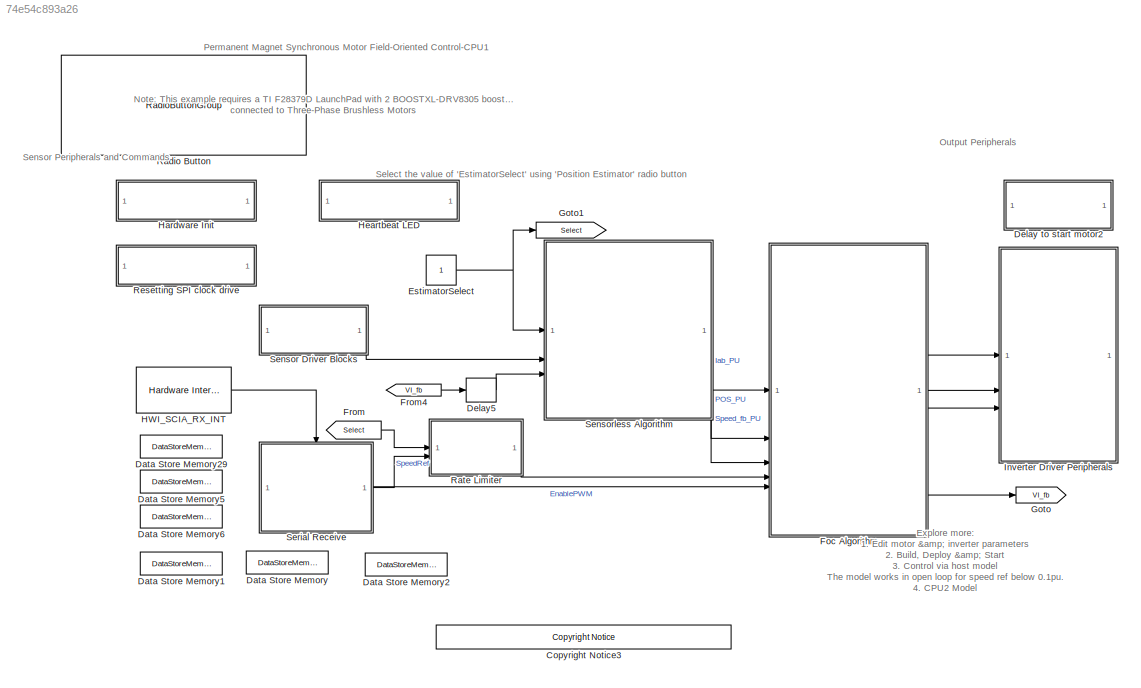
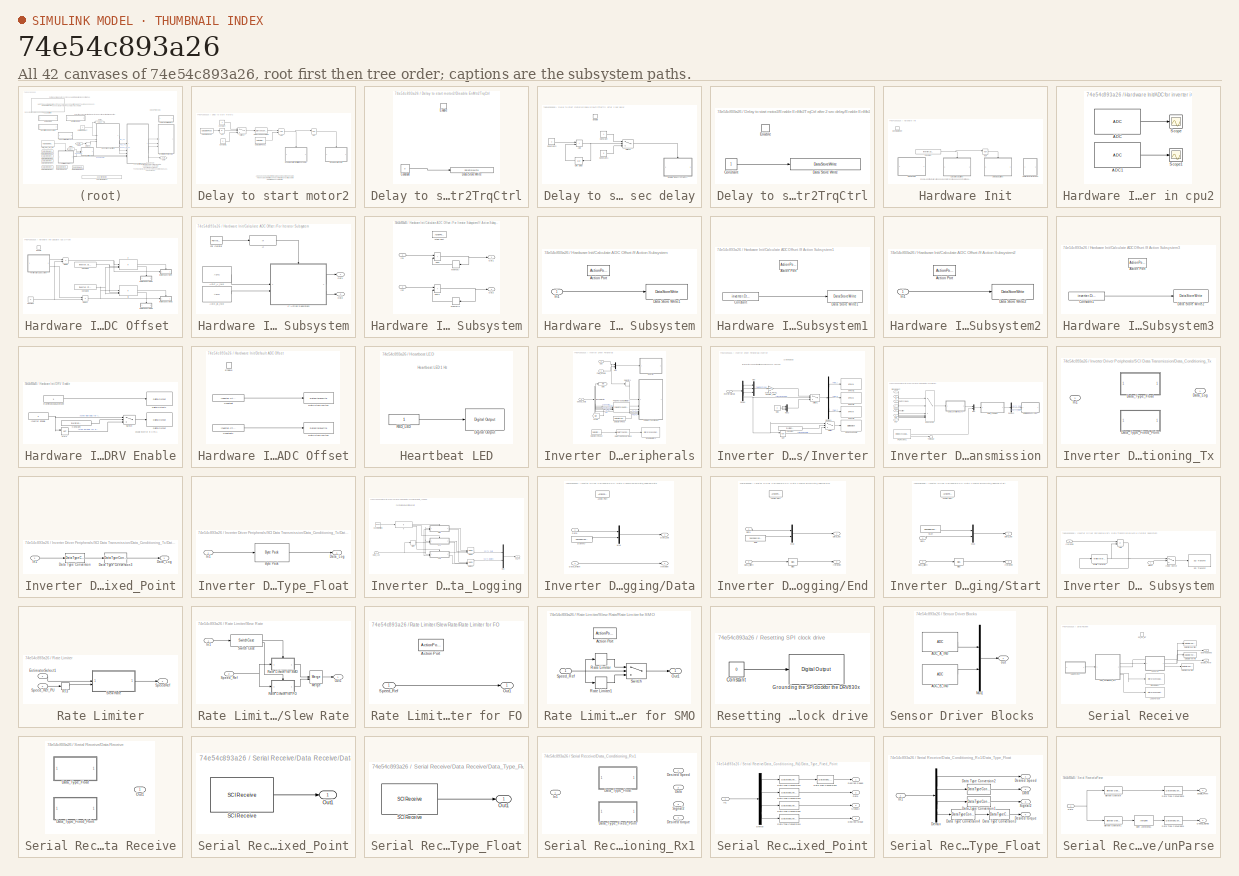
[diagram: thumbnail index - all 42 canvases of the model, root first then tree order]
MODEL slx_74e54c893a26
KIND model
CONFIG AbsTol = auto
CONFIG EnableMultiTasking = on
CONFIG FixedStep = auto
CONFIG InitFcn = mcb_pmsm_foc_dual_f28379d_datascript;
CONFIG MaxStep = auto
CONFIG MinStep = auto
CONFIG RelTol = 1e-3
CONFIG SampleTimeConstraint = Unconstrained
CONFIG SolverName = FixedStepDiscrete
CONFIG StartTime = 0.0
CONFIG StopTime = 6
WORKSPACE source: mxarray member
WORKSPACE encoderResolution = 2000
WORKSPACE hallOffset = '0.5'
WORKSPACE indexOffset = 850
WORKSPACE polePairs = '4'
BLOCK [Reference] <copyright redacted>
  SourceBlock = demo_controls/<copyright redacted>
  SourceType = <copyright redacted>
BLOCK [DataStoreMemory] Data Store Memory
  DataStoreName = SpeedRef
  NameLocation = right
  ReadBeforeWriteMsg = warning
  ShowAdditionalParam = off
  WriteAfterReadMsg = warning
  WriteAfterWriteMsg = warning
BLOCK [DataStoreMemory] Data Store Memory1
  DataStoreName = SignalSelect1
  ShowAdditionalParam = off
BLOCK [DataStoreMemory] Data Store Memory2
  DataStoreName = EnMtr2Ctrl
  OutDataTypeStr = boolean
  ReadBeforeWriteMsg = warning
  ShowAdditionalParam = off
  WriteAfterReadMsg = warning
  WriteAfterWriteMsg = warning
BLOCK [DataStoreMemory] Data Store Memory29
  DataStoreName = Enable
  InitialValue = 1
  OutDataTypeStr = boolean
  ReadBeforeWriteMsg = warning
  ShowAdditionalParam = off
  WriteAfterReadMsg = warning
  WriteAfterWriteMsg = warning
BLOCK [DataStoreMemory] Data Store Memory5
  DataStoreName = IaOffset
  InitialValue = inverter.CtSensAOffset
  ShowAdditionalParam = off
BLOCK [DataStoreMemory] Data Store Memory6
  DataStoreName = IbOffset
  InitialValue = inverter.CtSensBOffset
  ShowAdditionalParam = off
BLOCK [SubSystem] Delay to start motor2
  TreatAsAtomicUnit = on
  VariantControl = (codegen)
BLOCK [Logic] Delay to start motor2/AND
  AllPortsSameDT = off
  IconShape = distinctive
  OutDataTypeStr = boolean
BLOCK [Abs] Delay to start motor2/Abs
  SaturateOnIntegerOverflow = off
BLOCK [Constant] Delay to start motor2/Constant
  OutDataTypeStr = uint16
BLOCK [Constant] Delay to start motor2/Constant1
  OutDataTypeStr = uint16
  Value = 0
BLOCK [DataStoreRead] Delay to start motor2/Data Store Read
  DataStoreName = SpeedRef
  IndexOptions = Index vector (dialog)
  Indices = 1
  OutputSizes = 1
BLOCK [DataStoreRead] Delay to start motor2/Data Store Read1
  DataStoreName = Enable
  IndexOptions = Index vector (dialog)
  Indices = 1
  OutputSizes = 1
BLOCK [DataTypeConversion] Delay to start motor2/Data Type Conversion
  OutDataTypeStr = boolean
  RndMeth = Simplest
  SaturateOnIntegerOverflow = off
BLOCK [SubSystem] Delay to start motor2/Disable EnMtr2TrqCtrl
  TreatAsAtomicUnit = on
BLOCK [Constant] Delay to start motor2/Disable EnMtr2TrqCtrl/Constant
  OutDataTypeStr = boolean
  Value = 0
BLOCK [DataStoreWrite] Delay to start motor2/Disable EnMtr2TrqCtrl/Data Store Write
  DataStoreName = EnMtr2Ctrl
  IndexOptions = Index vector (dialog)
  Indices = 1
  OutputSizes = 1
BLOCK [EnablePort] Delay to start motor2/Disable EnMtr2TrqCtrl/Enable
  StatesWhenEnabling = reset
BLOCK [SubSystem] Delay to start motor2/Enable EnMtr2TrqCtrl after 2 sec delay
  TreatAsAtomicUnit = on
BLOCK [Sum] Delay to start motor2/Enable EnMtr2TrqCtrl after 2 sec delay/Add
  IconShape = rectangular
BLOCK [Constant] Delay to start motor2/Enable EnMtr2TrqCtrl after 2 sec delay/Constant
  OutDataTypeStr = boolean
BLOCK [Constant] Delay to start motor2/Enable EnMtr2TrqCtrl after 2 sec delay/Constant1
  OutDataTypeStr = boolean
  Value = 0
BLOCK [Constant] Delay to start motor2/Enable EnMtr2TrqCtrl after 2 sec delay/Constant2
  OutDataTypeStr = uint32
BLOCK [EnablePort] Delay to start motor2/Enable EnMtr2TrqCtrl after 2 sec delay/Enable
  StatesWhenEnabling = reset
BLOCK [SubSystem] Delay to start motor2/Enable EnMtr2TrqCtrl after 2 sec delay/Enable EnMtr2TrqCtrl
  TreatAsAtomicUnit = on
BLOCK [Constant] Delay to start motor2/Enable EnMtr2TrqCtrl after 2 sec delay/Enable EnMtr2TrqCtrl/Constant
  OutDataTypeStr = boolean
BLOCK [DataStoreWrite] Delay to start motor2/Enable EnMtr2TrqCtrl after 2 sec delay/Enable EnMtr2TrqCtrl/Data Store Write
  DataStoreName = EnMtr2Ctrl
  IndexOptions = Index vector (dialog)
  Indices = 1
  OutputSizes = 1
BLOCK [EnablePort] Delay to start motor2/Enable EnMtr2TrqCtrl after 2 sec delay/Enable EnMtr2TrqCtrl/Enable
  StatesWhenEnabling = reset
BLOCK [Switch] Delay to start motor2/Enable EnMtr2TrqCtrl after 2 sec delay/Switch
  Criteria = u2 > Threshold
  InputSameDT = off
  SaturateOnIntegerOverflow = off
  Threshold = 40000
BLOCK [UnitDelay] Delay to start motor2/Enable EnMtr2TrqCtrl after 2 sec delay/Unit Delay
  HasFrameUpgradeWarning = on
  NameLocation = top
  SampleTime = -1
BLOCK [Logic] Delay to start motor2/NOT
  AllPortsSameDT = off
  IconShape = distinctive
  Operator = NOT
  OutDataTypeStr = boolean
BLOCK [Switch] Delay to start motor2/Switch2
  Criteria = u2 > Threshold
  InputSameDT = off
  SaturateOnIntegerOverflow = off
  Threshold = Speed_openLoop_PU
BLOCK [Delay] Delay5
  DelayLength = 1
  InputPortMap = u0
BLOCK [Constant] EstimatorSelect
BLOCK [SubSystem] Foc  Algorithm
  ReferencedSubsystem = foc_sensorless_algorithm
BLOCK [From] From
  GotoTag = Select
BLOCK [From] From4
  GotoTag = VI_fb
BLOCK [Goto] Goto
  GotoTag = VI_fb
BLOCK [Goto] Goto1
  GotoTag = Select
BLOCK [Reference] HWI_SCIA_RX_INT  REF=svdschedulerlib/Hardware Interrupt v2
  LibrarySourceBlock = c2000lib/Scheduling/Hardware Interrupt
  SourceBlock = svdschedulerlib/Hardware Interrupt v2
  SourceType = HardwareInterrupt
  UserDataPersistent = on
BLOCK [SubSystem] Hardware Init
  TreatAsAtomicUnit = on
BLOCK [SubSystem] Hardware Init/ADC for inverter in cpu2
BLOCK [Reference] Hardware Init/ADC for inverter in cpu2/ADC  REF=c2802xlib/ADC
  SourceBlock = c2802xlib/ADC
  SourceType = ADC Type 3-5
  UserDataPersistent = on
BLOCK [Reference] Hardware Init/ADC for inverter in cpu2/ADC1  REF=c2802xlib/ADC
  SourceBlock = c2802xlib/ADC
  SourceType = ADC Type 3-5
  UserDataPersistent = on
BLOCK [Scope] Hardware Init/ADC for inverter in cpu2/Scope
  Floating = off
  NumInputPorts = 1
  ScopeSpecificationString = Simulink.scopes.TimeScopeBlockCfg('CurrentConfiguration', extmgr.ConfigurationSet(extmgr.Configuration('Core','General UI',true),extmgr.Configuration('Core','Source UI',true),extmgr.Configuration('Sources','WiredSimulink',true),extmgr.Configuration('Visuals','Time Domain',true),extmgr.Configuration('Tools','Plot Navigation',true),extmgr.Configuration('Tools','Measurements',true)),'Version','2021a'...<+1ch>
BLOCK [Scope] Hardware Init/ADC for inverter in cpu2/Scope1
  Floating = off
  NumInputPorts = 1
  ScopeSpecificationString = Simulink.scopes.TimeScopeBlockCfg('CurrentConfiguration', extmgr.ConfigurationSet(extmgr.Configuration('Core','General UI',true),extmgr.Configuration('Core','Source UI',true),extmgr.Configuration('Sources','WiredSimulink',true,'DataLoggingVariableName','ScopeData1'),extmgr.Configuration('Visuals','Time Domain',true),extmgr.Configuration('Tools','Plot Navigation',true),extmgr.Configuration('Tools',...<+40ch>
BLOCK [SubSystem] Hardware Init/Calculate ADC Offset 
  Priority = 1001
  TreatAsAtomicUnit = on
BLOCK [Constant] Hardware Init/Calculate ADC Offset /Constant
  Value = 8
BLOCK [Constant] Hardware Init/Calculate ADC Offset /Constant1
  OutDataTypeStr = Inherit: Inherit via back propagation
  Value = inverter.CtSensOffsetMax
BLOCK [Constant] Hardware Init/Calculate ADC Offset /Constant2
  OutDataTypeStr = Inherit: Inherit via back propagation
  Value = inverter.CtSensOffsetMin
BLOCK [Product] Hardware Init/Calculate ADC Offset /Divide
  Inputs = */
  OutDataTypeStr = uint16
BLOCK [Product] Hardware Init/Calculate ADC Offset /Divide1
  Inputs = */
  OutDataTypeStr = uint16
BLOCK [EnablePort] Hardware Init/Calculate ADC Offset /Enable
BLOCK [SubSystem] Hardware Init/Calculate ADC Offset /For Iterator Subsystem
  TreatAsAtomicUnit = on
BLOCK [Reference] Hardware Init/Calculate ADC Offset /For Iterator Subsystem/ADC_A_IN0  REF=c2802xlib/ADC
  Priority = 20
  SourceBlock = c2802xlib/ADC
  SourceType = ADC Type 3-5
  UserDataPersistent = on
BLOCK [Reference] Hardware Init/Calculate ADC Offset /For Iterator Subsystem/ADC_B_IN0  REF=c2802xlib/ADC
  Priority = 20
  SourceBlock = c2802xlib/ADC
  SourceType = ADC Type 3-5
  UserDataPersistent = on
BLOCK [ForIterator] Hardware Init/Calculate ADC Offset /For Iterator Subsystem/For Iterator
  IterationLimit = 16
  IterationVariableDataType = uint16
BLOCK [If] Hardware Init/Calculate ADC Offset /For Iterator Subsystem/If
  IfExpression = u1 > 8
  ShowElse = off
BLOCK [SubSystem] Hardware Init/Calculate ADC Offset /For Iterator Subsystem/If Action Subsystem
  TreatAsAtomicUnit = on
BLOCK [ActionPort] Hardware Init/Calculate ADC Offset /For Iterator Subsystem/If Action Subsystem/Action Port
  ActionPortLabel = if(u1 > 8)
BLOCK [Inport] Hardware Init/Calculate ADC Offset /For Iterator Subsystem/If Action Subsystem/In1
BLOCK [Inport] Hardware Init/Calculate ADC Offset /For Iterator Subsystem/If Action Subsystem/In2
  Port = 2
BLOCK [Memory] Hardware Init/Calculate ADC Offset /For Iterator Subsystem/If Action Subsystem/Memory
  InheritSampleTime = on
  NameLocation = top
BLOCK [Memory] Hardware Init/Calculate ADC Offset /For Iterator Subsystem/If Action Subsystem/Memory1
  InheritSampleTime = on
  NameLocation = top
BLOCK [Outport] Hardware Init/Calculate ADC Offset /For Iterator Subsystem/If Action Subsystem/Out1
BLOCK [Outport] Hardware Init/Calculate ADC Offset /For Iterator Subsystem/If Action Subsystem/Out2
  Port = 2
BLOCK [Sum] Hardware Init/Calculate ADC Offset /For Iterator Subsystem/If Action Subsystem/Sum
  IconShape = rectangular
BLOCK [Sum] Hardware Init/Calculate ADC Offset /For Iterator Subsystem/If Action Subsystem/Sum1
  IconShape = rectangular
BLOCK [Outport] Hardware Init/Calculate ADC Offset /For Iterator Subsystem/Out1
BLOCK [Outport] Hardware Init/Calculate ADC Offset /For Iterator Subsystem/Out2
  Port = 2
BLOCK [If] Hardware Init/Calculate ADC Offset /If
  IfExpression = u1 > u3 & u1 < u2
  NumInputs = 3
BLOCK [SubSystem] Hardware Init/Calculate ADC Offset /If Action Subsystem
  TreatAsAtomicUnit = on
BLOCK [ActionPort] Hardware Init/Calculate ADC Offset /If Action Subsystem/Action Port
  ActionPortLabel = if(u1 > u3 & u1 < u2)
BLOCK [DataStoreWrite] Hardware Init/Calculate ADC Offset /If Action Subsystem/Data Store Write1
  DataStoreName = IaOffset
  IndexOptions = Index vector (dialog)
  Indices = 1
  OutputSizes = 1
BLOCK [Inport] Hardware Init/Calculate ADC Offset /If Action Subsystem/In1
BLOCK [SubSystem] Hardware Init/Calculate ADC Offset /If Action Subsystem1
  TreatAsAtomicUnit = on
BLOCK [ActionPort] Hardware Init/Calculate ADC Offset /If Action Subsystem1/Action Port
  ActionPortLabel = else
BLOCK [Constant] Hardware Init/Calculate ADC Offset /If Action Subsystem1/Constant
  OutDataTypeStr = Inherit: Inherit via back propagation
  Value = inverter.CtSensAOffset
BLOCK [DataStoreWrite] Hardware Init/Calculate ADC Offset /If Action Subsystem1/Data Store Write1
  DataStoreName = IaOffset
  IndexOptions = Index vector (dialog)
  Indices = 1
  OutputSizes = 1
BLOCK [SubSystem] Hardware Init/Calculate ADC Offset /If Action Subsystem2
  TreatAsAtomicUnit = on
BLOCK [ActionPort] Hardware Init/Calculate ADC Offset /If Action Subsystem2/Action Port
  ActionPortLabel = if(u1 > u3 & u1 < u2)
BLOCK [DataStoreWrite] Hardware Init/Calculate ADC Offset /If Action Subsystem2/Data Store Write2
  DataStoreName = IbOffset
  IndexOptions = Index vector (dialog)
  Indices = 1
  OutputSizes = 1
BLOCK [Inport] Hardware Init/Calculate ADC Offset /If Action Subsystem2/In1
BLOCK [SubSystem] Hardware Init/Calculate ADC Offset /If Action Subsystem3
  TreatAsAtomicUnit = on
BLOCK [ActionPort] Hardware Init/Calculate ADC Offset /If Action Subsystem3/Action Port
  ActionPortLabel = else
BLOCK [Constant] Hardware Init/Calculate ADC Offset /If Action Subsystem3/Constant1
  OutDataTypeStr = Inherit: Inherit via back propagation
  Value = inverter.CtSensBOffset
BLOCK [DataStoreWrite] Hardware Init/Calculate ADC Offset /If Action Subsystem3/Data Store Write2
  DataStoreName = IbOffset
  IndexOptions = Index vector (dialog)
  Indices = 1
  OutputSizes = 1
BLOCK [If] Hardware Init/Calculate ADC Offset /If1
  IfExpression = u1 > u3 & u1 < u2
  NumInputs = 3
BLOCK [Constant] Hardware Init/Constant
  Value = inverter.ADCOffsetCalibEnable
BLOCK [SubSystem] Hardware Init/DRV Enable
  Priority = 1
BLOCK [Constant] Hardware Init/DRV Enable/Constant
  Value = inverter.EnableLogic
BLOCK [Reference] Hardware Init/DRV Enable/Digital Output  REF=c2837xDlib/Digital Output
  Priority = 10
  SourceBlock = c2837xDlib/Digital Output
  SourceType = F2837x GPIO Digital Output
  UserDataPersistent = on
BLOCK [Reference] Hardware Init/DRV Enable/Digital Output1  REF=c2837xDlib/Digital Output
  Priority = 10
  SourceBlock = c2837xDlib/Digital Output
  SourceType = F2837x GPIO Digital Output
  UserDataPersistent = on
BLOCK [Constant] Hardware Init/DRV Enable/Inverter Enable
  OutDataTypeStr = uint16
  SampleTime = -1
BLOCK [Logic] Hardware Init/DRV Enable/NOT
  AllPortsSameDT = off
  IconShape = distinctive
  Operator = NOT
  OutDataTypeStr = boolean
BLOCK [Constant] Hardware Init/DRV Enable/RunTimeMeasurement
  OutDataTypeStr = uint16
  SampleTime = -1
BLOCK [Switch] Hardware Init/DRV Enable/Switch
  Criteria = u2 > Threshold
  InputSameDT = off
  SaturateOnIntegerOverflow = off
BLOCK [SubSystem] Hardware Init/Default ADC Offset
  Priority = 1001
  TreatAsAtomicUnit = on
BLOCK [Constant] Hardware Init/Default ADC Offset/Constant
  OutDataTypeStr = Inherit: Inherit via back propagation
  Value = inverter.CtSensAOffset
BLOCK [Constant] Hardware Init/Default ADC Offset/Constant1
  OutDataTypeStr = Inherit: Inherit via back propagation
  Value = inverter.CtSensBOffset
BLOCK [DataStoreWrite] Hardware Init/Default ADC Offset/Data Store Write1
  DataStoreName = IaOffset
  IndexOptions = Index vector (dialog)
  Indices = 1
  OutputSizes = 1
BLOCK [DataStoreWrite] Hardware Init/Default ADC Offset/Data Store Write2
  DataStoreName = IbOffset
  IndexOptions = Index vector (dialog)
  Indices = 1
  OutputSizes = 1
BLOCK [EnablePort] Hardware Init/Default ADC Offset/Enable
BLOCK [EventListener] Hardware Init/Event Listener
  DisableCoverage = on
  EventName = reset
BLOCK [Logic] Hardware Init/NOT
  AllPortsSameDT = off
  IconShape = distinctive
  Operator = NOT
  OutDataTypeStr = boolean
BLOCK [SubSystem] Heartbeat LED
  TreatAsAtomicUnit = on
BLOCK [Reference] Heartbeat LED/Digital Output  REF=c2837xDlib/Digital Output
  SourceBlock = c2837xDlib/Digital Output
  SourceType = F2837x GPIO Digital Output
  UserDataPersistent = on
BLOCK [Constant] Heartbeat LED/RED_LED
  OutDataTypeStr = uint16
  SampleTime = 0.5
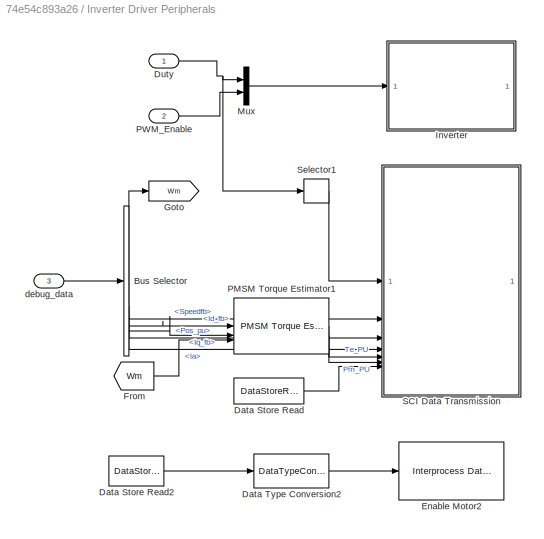
BLOCK [SubSystem] Inverter Driver Peripherals
  RTWMemSecFuncExecute = code_ramfuncs
  RTWSystemCode = Nonreusable function
  TreatAsAtomicUnit = on
BLOCK [BusSelector] Inverter Driver Peripherals/Bus Selector
  OutputSignals = Speedfb,Pos_pu,Ia,Id_fb,Iq_fb
BLOCK [DataStoreRead] Inverter Driver Peripherals/Data Store Read
  DataStoreName = SignalSelect1
  IndexOptions = Index vector (dialog)
  Indices = 1
  OutputSizes = 1
BLOCK [DataStoreRead] Inverter Driver Peripherals/Data Store Read2
  DataStoreName = EnMtr2Ctrl
  IndexOptions = Index vector (dialog)
  Indices = 1
  OutputSizes = 1
BLOCK [DataTypeConversion] Inverter Driver Peripherals/Data Type Conversion2
  OutDataTypeStr = uint16
  RndMeth = Floor
  SaturateOnIntegerOverflow = off
BLOCK [Inport] Inverter Driver Peripherals/Duty
BLOCK [Reference] Inverter Driver Peripherals/Enable Motor2  REF=procinterlib/Interprocess Data Write
  SourceBlock = procinterlib/Interprocess Data Write
  SourceType = Interprocess Data Write
BLOCK [From] Inverter Driver Peripherals/From
  GotoTag = Wm
BLOCK [Goto] Inverter Driver Peripherals/Goto
  GotoTag = Wm
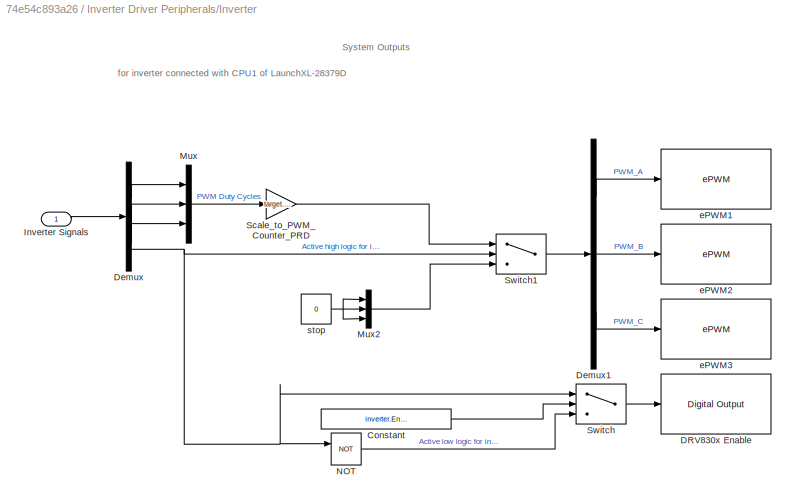
BLOCK [SubSystem] Inverter Driver Peripherals/Inverter
BLOCK [Constant] Inverter Driver Peripherals/Inverter/Constant
  Value = inverter.EnableLogic
BLOCK [Reference] Inverter Driver Peripherals/Inverter/DRV830x Enable  REF=c2837xDlib/Digital Output
  SourceBlock = c2837xDlib/Digital Output
  SourceType = F2837x GPIO Digital Output
  UserDataPersistent = on
BLOCK [Demux] Inverter Driver Peripherals/Inverter/Demux
BLOCK [Demux] Inverter Driver Peripherals/Inverter/Demux1
  Outputs = 3
BLOCK [Inport] Inverter Driver Peripherals/Inverter/Inverter Signals
BLOCK [Mux] Inverter Driver Peripherals/Inverter/Mux
  DisplayOption = bar
  Inputs = 3
BLOCK [Mux] Inverter Driver Peripherals/Inverter/Mux2
  DisplayOption = bar
  Inputs = 3
BLOCK [Logic] Inverter Driver Peripherals/Inverter/NOT
  AllPortsSameDT = off
  IconShape = distinctive
  Operator = NOT
  OutDataTypeStr = boolean
BLOCK [Gain] Inverter Driver Peripherals/Inverter/Scale_to_PWM_Counter_PRD
  Gain = target.PWM_Counter_Period
  OutDataTypeStr = uint16
  RndMeth = Simplest
BLOCK [Switch] Inverter Driver Peripherals/Inverter/Switch
  Criteria = u2 > Threshold
  InputSameDT = off
  SaturateOnIntegerOverflow = off
BLOCK [Switch] Inverter Driver Peripherals/Inverter/Switch1
  InputSameDT = off
  SaturateOnIntegerOverflow = off
  Threshold = 0.5
BLOCK [Reference] Inverter Driver Peripherals/Inverter/ePWM1  REF=c2802xlib/ePWM
  SourceBlock = c2802xlib/ePWM
  SourceType = ePWM Type 1-4
  UserDataPersistent = on
BLOCK [Reference] Inverter Driver Peripherals/Inverter/ePWM2  REF=c2802xlib/ePWM
  SourceBlock = c2802xlib/ePWM
  SourceType = ePWM Type 1-4
  UserDataPersistent = on
BLOCK [Reference] Inverter Driver Peripherals/Inverter/ePWM3  REF=c2802xlib/ePWM
  SourceBlock = c2802xlib/ePWM
  SourceType = ePWM Type 1-4
  UserDataPersistent = on
BLOCK [Constant] Inverter Driver Peripherals/Inverter/stop
  OutDataTypeStr = uint16
  Value = 0
BLOCK [Mux] Inverter Driver Peripherals/Mux
  DisplayOption = bar
  Inputs = 2
BLOCK [Reference] Inverter Driver Peripherals/PMSM Torque Estimator1  REF=mcbpmsmnonlinearlib/PMSM Torque Estimator
  SourceBlock = mcbpmsmnonlinearlib/PMSM Torque Estimator
  SourceType = PMSM Torque Estimator
BLOCK [Inport] Inverter Driver Peripherals/PWM_Enable
  Port = 2
BLOCK [SubSystem] Inverter Driver Peripherals/SCI Data Transmission
BLOCK [SubSystem] Inverter Driver Peripherals/SCI Data Transmission/Data_Conditioning_Tx
  Variant = on
BLOCK [Outport] Inverter Driver Peripherals/SCI Data Transmission/Data_Conditioning_Tx/Data_Log
BLOCK [SubSystem] Inverter Driver Peripherals/SCI Data Transmission/Data_Conditioning_Tx/Data_Type_Fixed_Point
  VariantControl = ~isequal(dataType,'single')
BLOCK [DataTypeConversion] Inverter Driver Peripherals/SCI Data Transmission/Data_Conditioning_Tx/Data_Type_Fixed_Point/Data Type Conversion
  OutDataTypeStr = fixdt(1,32,28)
  RndMeth = Simplest
  SaturateOnIntegerOverflow = off
BLOCK [DataTypeConversion] Inverter Driver Peripherals/SCI Data Transmission/Data_Conditioning_Tx/Data_Type_Fixed_Point/Data Type Conversion3
  ConvertRealWorld = Stored Integer (SI)
  OutDataTypeStr = uint32
  RndMeth = Simplest
  SaturateOnIntegerOverflow = off
BLOCK [Outport] Inverter Driver Peripherals/SCI Data Transmission/Data_Conditioning_Tx/Data_Type_Fixed_Point/Data_Log
BLOCK [Inport] Inverter Driver Peripherals/SCI Data Transmission/Data_Conditioning_Tx/Data_Type_Fixed_Point/In1
BLOCK [SubSystem] Inverter Driver Peripherals/SCI Data Transmission/Data_Conditioning_Tx/Data_Type_Float
  VariantControl = isequal(dataType, 'single')
BLOCK [Reference] Inverter Driver Peripherals/SCI Data Transmission/Data_Conditioning_Tx/Data_Type_Float/Byte Pack  REF=svdutilitieslib/Byte Pack
  SourceBlock = svdutilitieslib/Byte Pack
  SourceType = Byte pack
BLOCK [Outport] Inverter Driver Peripherals/SCI Data Transmission/Data_Conditioning_Tx/Data_Type_Float/Data_Log
BLOCK [Inport] Inverter Driver Peripherals/SCI Data Transmission/Data_Conditioning_Tx/Data_Type_Float/In1
BLOCK [Inport] Inverter Driver Peripherals/SCI Data Transmission/Data_Conditioning_Tx/In1
BLOCK [SubSystem] Inverter Driver Peripherals/SCI Data Transmission/Data_Logging
BLOCK [Reference] Inverter Driver Peripherals/SCI Data Transmission/Data_Logging/Counter Limited  REF=simulink/Sources/Counter
Limited
  SourceBlock = simulink/Sources/Counter\nLimited
  SourceType = Counter Limited
BLOCK [SubSystem] Inverter Driver Peripherals/SCI Data Transmission/Data_Logging/Data
  TreatAsAtomicUnit = on
BLOCK [ActionPort] Inverter Driver Peripherals/SCI Data Transmission/Data_Logging/Data/Action Port
  ActionPortLabel = else
BLOCK [Inport] Inverter Driver Peripherals/SCI Data Transmission/Data_Logging/Data/Data
BLOCK [Outport] Inverter Driver Peripherals/SCI Data Transmission/Data_Logging/Data/Data_out
  VectorParamsAs1DForOutWhenUnconnected = off
BLOCK [Inport] Inverter Driver Peripherals/SCI Data Transmission/Data_Logging/Data/Data_width
  Port = 2
BLOCK [Constant] Inverter Driver Peripherals/SCI Data Transmission/Data_Logging/Data/Dummy
  OutDataTypeStr = uint32
  Value = hex2dec('0000')
BLOCK [Outport] Inverter Driver Peripherals/SCI Data Transmission/Data_Logging/Data/Iteration
  Port = 2
  VectorParamsAs1DForOutWhenUnconnected = off
BLOCK [Mux] Inverter Driver Peripherals/SCI Data Transmission/Data_Logging/Data/Mux
  DisplayOption = bar
  Inputs = 2
BLOCK [Inport] Inverter Driver Peripherals/SCI Data Transmission/Data_Logging/Data_Log
BLOCK [SubSystem] Inverter Driver Peripherals/SCI Data Transmission/Data_Logging/End
  TreatAsAtomicUnit = on
BLOCK [ActionPort] Inverter Driver Peripherals/SCI Data Transmission/Data_Logging/End/Action Port
  ActionPortLabel = elseif(u1 == 599)
BLOCK [Bias] Inverter Driver Peripherals/SCI Data Transmission/Data_Logging/End/Bias
  Bias = 1
  SaturateOnIntegerOverflow = off
BLOCK [Inport] Inverter Driver Peripherals/SCI Data Transmission/Data_Logging/End/Data
BLOCK [Outport] Inverter Driver Peripherals/SCI Data Transmission/Data_Logging/End/Data_out
  VectorParamsAs1DForOutWhenUnconnected = off
BLOCK [Inport] Inverter Driver Peripherals/SCI Data Transmission/Data_Logging/End/Data_width
  Port = 2
BLOCK [Constant] Inverter Driver Peripherals/SCI Data Transmission/Data_Logging/End/End
  OutDataTypeStr = uint32
  Value = hex2dec('45454545')
BLOCK [Outport] Inverter Driver Peripherals/SCI Data Transmission/Data_Logging/End/Iteration
  Port = 2
  VectorParamsAs1DForOutWhenUnconnected = off
BLOCK [Mux] Inverter Driver Peripherals/SCI Data Transmission/Data_Logging/End/Mux
  DisplayOption = bar
  Inputs = 2
BLOCK [If] Inverter Driver Peripherals/SCI Data Transmission/Data_Logging/If
  ElseIfExpressions = u1 == 599
  IfExpression = u1 == 0
BLOCK [Merge] Inverter Driver Peripherals/SCI Data Transmission/Data_Logging/Merge
  Inputs = 3
BLOCK [Merge] Inverter Driver Peripherals/SCI Data Transmission/Data_Logging/Merge1
  Inputs = 3
BLOCK [Mux] Inverter Driver Peripherals/SCI Data Transmission/Data_Logging/Mux
  DisplayOption = bar
  Inputs = 2
BLOCK [Outport] Inverter Driver Peripherals/SCI Data Transmission/Data_Logging/SCI_Tx
BLOCK [SubSystem] Inverter Driver Peripherals/SCI Data Transmission/Data_Logging/Start
  TreatAsAtomicUnit = on
BLOCK [ActionPort] Inverter Driver Peripherals/SCI Data Transmission/Data_Logging/Start/Action Port
  ActionPortLabel = if(u1 == 0)
BLOCK [Bias] Inverter Driver Peripherals/SCI Data Transmission/Data_Logging/Start/Bias
  Bias = 1
  SaturateOnIntegerOverflow = off
BLOCK [Inport] Inverter Driver Peripherals/SCI Data Transmission/Data_Logging/Start/Data
BLOCK [Outport] Inverter Driver Peripherals/SCI Data Transmission/Data_Logging/Start/Data_out
  VectorParamsAs1DForOutWhenUnconnected = off
BLOCK [Inport] Inverter Driver Peripherals/SCI Data Transmission/Data_Logging/Start/Data_width
  Port = 2
BLOCK [Outport] Inverter Driver Peripherals/SCI Data Transmission/Data_Logging/Start/Iteration
  Port = 2
  VectorParamsAs1DForOutWhenUnconnected = off
BLOCK [Mux] Inverter Driver Peripherals/SCI Data Transmission/Data_Logging/Start/Mux
  DisplayOption = bar
  Inputs = 2
BLOCK [Constant] Inverter Driver Peripherals/SCI Data Transmission/Data_Logging/Start/Start
  OutDataTypeStr = uint32
  Value = hex2dec('53535353')
BLOCK [Width] Inverter Driver Peripherals/SCI Data Transmission/Data_Logging/Width
  DataType = uint16
  OutDataTypeMode = All ports same datatype
BLOCK [Demux] Inverter Driver Peripherals/SCI Data Transmission/Demux2
  Outputs = 2
BLOCK [Inport] Inverter Driver Peripherals/SCI Data Transmission/Duty Cycle (Va)
BLOCK [Reference] Inverter Driver Peripherals/SCI Data Transmission/IPC Receive1  REF=procinterlib/Interprocess Data Read
  SourceBlock = procinterlib/Interprocess Data Read
  SourceType = Interprocess Data Read
BLOCK [Inport] Inverter Driver Peripherals/SCI Data Transmission/Ia
  Port = 4
BLOCK [MultiPortSwitch] Inverter Driver Peripherals/SCI Data Transmission/Index Vector
  DataPortOrder = Zero-based contiguous
  InputSameDT = off
  Inputs = 6
  SaturateOnIntegerOverflow = off
  zeroidx = on
BLOCK [Mux] Inverter Driver Peripherals/SCI Data Transmission/Mux
  DisplayOption = bar
  Inputs = 2
BLOCK [Inport] Inverter Driver Peripherals/SCI Data Transmission/Pm
  Port = 6
BLOCK [Inport] Inverter Driver Peripherals/SCI Data Transmission/Position
  Port = 3
BLOCK [Inport] Inverter Driver Peripherals/SCI Data Transmission/Signal Select
  Port = 7
BLOCK [Inport] Inverter Driver Peripherals/SCI Data Transmission/Speed
  Port = 2
BLOCK [Terminator] Inverter Driver Peripherals/SCI Data Transmission/Terminator
BLOCK [Inport] Inverter Driver Peripherals/SCI Data Transmission/Tm
  Port = 5
BLOCK [SubSystem] Inverter Driver Peripherals/SCI Data Transmission/While Iterator Subsystem
  TreatAsAtomicUnit = on
BLOCK [Sum] Inverter Driver Peripherals/SCI Data Transmission/While Iterator Subsystem/Add
  IconShape = rectangular
  Inputs = +-
  OutDataTypeStr = Inherit: Same as first input
BLOCK [Inport] Inverter Driver Peripherals/SCI Data Transmission/While Iterator Subsystem/Data
BLOCK [MultiPortSwitch] Inverter Driver Peripherals/SCI Data Transmission/While Iterator Subsystem/Index Vector
  InputSameDT = off
  Inputs = 1
  SaturateOnIntegerOverflow = off
BLOCK [Inport] Inverter Driver Peripherals/SCI Data Transmission/While Iterator Subsystem/Iteration
  Port = 2
BLOCK [Reference] Inverter Driver Peripherals/SCI Data Transmission/While Iterator Subsystem/SCI Transmit  REF=c280xlib/SCI Transmit
  SourceBlock = c280xlib/SCI Transmit
  SourceType = C28x SCI Transmit
BLOCK [WhileIterator] Inverter Driver Peripherals/SCI Data Transmission/While Iterator Subsystem/While Iterator
  MaxIters = -1
  OutputDataType = int16
  ShowIterationPort = on
  WhileBlockType = do-while
BLOCK [Selector] Inverter Driver Peripherals/Selector1
  IndexOptions = Index vector (dialog)
  Indices = [1]
  InputPortWidth = 3
  OutputSizes = 1
BLOCK [Inport] Inverter Driver Peripherals/debug_data
  Port = 3
BLOCK [RadioButtonGroup] Radio Button
  ButtonGroupName = Postion Estimator
  LabelPosition = Hide
  SelectedLabel = Flux observer
BLOCK [SubSystem] Rate Limiter
  SystemSampleTime = Ts_speed
BLOCK [Inport] Rate Limiter/EstimatorSelect1
BLOCK [RateTransition] Rate Limiter/RT3
  Deterministic = off
  NameLocation = top
  OutPortSampleTime = Ts_speed
BLOCK [SubSystem] Rate Limiter/Slew Rate
  SystemSampleTime = Ts_speed
  TreatAsAtomicUnit = on
BLOCK [Inport] Rate Limiter/Slew Rate/In1
BLOCK [Merge] Rate Limiter/Slew Rate/Merge
BLOCK [Outport] Rate Limiter/Slew Rate/Out1
BLOCK [SubSystem] Rate Limiter/Slew Rate/Rate Limiter for FO
  TreatAsAtomicUnit = on
BLOCK [ActionPort] Rate Limiter/Slew Rate/Rate Limiter for FO/Action Port
  ActionPortLabel = case [ 1 ]:
BLOCK [Outport] Rate Limiter/Slew Rate/Rate Limiter for FO/Out1
BLOCK [Inport] Rate Limiter/Slew Rate/Rate Limiter for FO/Speed_Ref
BLOCK [SubSystem] Rate Limiter/Slew Rate/Rate Limiter for SMO
  TreatAsAtomicUnit = on
BLOCK [ActionPort] Rate Limiter/Slew Rate/Rate Limiter for SMO/Action Port
  ActionPortLabel = case [ 0 ]:
BLOCK [Outport] Rate Limiter/Slew Rate/Rate Limiter for SMO/Out1
BLOCK [RateLimiter] Rate Limiter/Slew Rate/Rate Limiter for SMO/Rate Limiter
  FallingSlewLimit = -acceleration
  InitialCondition = Speed_openLoop_PU
  RisingSlewLimit = acceleration
  SampleTimeMode = inherited
BLOCK [RateLimiter] Rate Limiter/Slew Rate/Rate Limiter for SMO/Rate Limiter1
  FallingSlewLimit = -acceleration
  InitialCondition = -Speed_openLoop_PU
  RisingSlewLimit = acceleration
  SampleTimeMode = inherited
BLOCK [Inport] Rate Limiter/Slew Rate/Rate Limiter for SMO/Speed_Ref
BLOCK [Switch] Rate Limiter/Slew Rate/Rate Limiter for SMO/Switch
  InputSameDT = off
  SaturateOnIntegerOverflow = off
BLOCK [Inport] Rate Limiter/Slew Rate/Speed_Ref
  Port = 2
BLOCK [SwitchCase] Rate Limiter/Slew Rate/Switch Case
  CaseConditions = {0,1}
  ShowDefaultCase = off
BLOCK [Outport] Rate Limiter/SpeedRef
BLOCK [Inport] Rate Limiter/Speed_Ref_PU
  Port = 2
BLOCK [SubSystem] Resetting SPI clock drive
BLOCK [Constant] Resetting SPI clock drive/Constant
  OutDataTypeStr = uint16
  SampleTime = 0.01
  Value = 0
BLOCK [Reference] Resetting SPI clock drive/Grounding the SPI clockfor the DRV830x  REF=c2837xDlib/Digital Output
  SourceBlock = c2837xDlib/Digital Output
  SourceType = F2837x GPIO Digital Output
  UserDataPersistent = on
BLOCK [SubSystem] Sensor Driver Blocks 
  RTWMemSecFuncExecute = code_ramfuncs
  RTWSystemCode = Nonreusable function
  SystemSampleTime = Ts
  TreatAsAtomicUnit = on
  VariantControl = (codegen)
BLOCK [Reference] Sensor Driver Blocks /ADC_A_IN0  REF=c2802xlib/ADC
  SourceBlock = c2802xlib/ADC
  SourceType = ADC Type 3-5
  UserDataPersistent = on
BLOCK [Reference] Sensor Driver Blocks /ADC_B_IN0  REF=c2802xlib/ADC
  SourceBlock = c2802xlib/ADC
  SourceType = ADC Type 3-5
  UserDataPersistent = on
BLOCK [Mux] Sensor Driver Blocks /Mux1
  DisplayOption = bar
  Inputs = 2
BLOCK [Outport] Sensor Driver Blocks /out
BLOCK [SubSystem] Sensorless Algorithm
  RTWMemSecFuncExecute = code_ramfuncs
  RTWSystemCode = Nonreusable function
  ReferencedSubsystem = sensorless_algorithm
  TreatAsAtomicUnit = on
BLOCK [SubSystem] Serial Receive
  RTWMemSecFuncExecute = code_ramfuncs
  SystemSampleTime = 1e-3
BLOCK [SubSystem] Serial Receive/Data Receive
  Variant = on
BLOCK [SubSystem] Serial Receive/Data Receive/Data_Type_Fixed_Point
  VariantControl = ~isequal(dataType, 'single')
BLOCK [Outport] Serial Receive/Data Receive/Data_Type_Fixed_Point/Out1
BLOCK [Reference] Serial Receive/Data Receive/Data_Type_Fixed_Point/SCI Receive  REF=c280xlib/SCI Receive
  SourceBlock = c280xlib/SCI Receive
  SourceType = C28x SCI Receive
BLOCK [SubSystem] Serial Receive/Data Receive/Data_Type_Float
  VariantControl = isequal(dataType, 'single')
BLOCK [Outport] Serial Receive/Data Receive/Data_Type_Float/Out1
BLOCK [Reference] Serial Receive/Data Receive/Data_Type_Float/SCI Receive  REF=c280xlib/SCI Receive
  SourceBlock = c280xlib/SCI Receive
  SourceType = C28x SCI Receive
BLOCK [Outport] Serial Receive/Data Receive/Out1
BLOCK [DataStoreWrite] Serial Receive/Data Store Write
  DataStoreName = Enable
  IndexOptions = Index vector (dialog)
  Indices = 1
  OutputSizes = 1
BLOCK [DataStoreWrite] Serial Receive/Data Store Write1
  DataStoreName = SpeedRef
  IndexOptions = Index vector (dialog)
  Indices = 1
  OutputSizes = 1
BLOCK [DataStoreWrite] Serial Receive/Data Store Write2
  DataStoreName = SignalSelect1
  IndexOptions = Index vector (dialog)
  Indices = 1
  OutputSizes = 1
BLOCK [SubSystem] Serial Receive/Data_Conditioning_Rx1
  Variant = on
BLOCK [Outport] Serial Receive/Data_Conditioning_Rx1/Data
  Port = 2
BLOCK [SubSystem] Serial Receive/Data_Conditioning_Rx1/Data_Type_Fixed_Point
  VariantControl = ~isequal(dataType, 'single')
BLOCK [Outport] Serial Receive/Data_Conditioning_Rx1/Data_Type_Fixed_Point/Data
  Port = 2
BLOCK [DataTypeConversion] Serial Receive/Data_Conditioning_Rx1/Data_Type_Fixed_Point/Data Type Conversion1
  OutDataTypeStr = dataType
  RndMeth = Simplest
  SaturateOnIntegerOverflow = off
BLOCK [DataTypeConversion] Serial Receive/Data_Conditioning_Rx1/Data_Type_Fixed_Point/Data Type Conversion2
  ConvertRealWorld = Stored Integer (SI)
  OutDataTypeStr = fixdt(1,32,28)
  RndMeth = Simplest
  SaturateOnIntegerOverflow = off
BLOCK [DataTypeConversion] Serial Receive/Data_Conditioning_Rx1/Data_Type_Fixed_Point/Data Type Conversion3
  OutDataTypeStr = uint16
  RndMeth = Simplest
  SaturateOnIntegerOverflow = off
BLOCK [DataTypeConversion] Serial Receive/Data_Conditioning_Rx1/Data_Type_Fixed_Point/Data Type Conversion4
  OutDataTypeStr = uint32
  RndMeth = Simplest
  SaturateOnIntegerOverflow = off
BLOCK [DataTypeConversion] Serial Receive/Data_Conditioning_Rx1/Data_Type_Fixed_Point/Data Type Conversion6
  OutDataTypeStr = uint16
  RndMeth = Simplest
  SaturateOnIntegerOverflow = off
BLOCK [Demux] Serial Receive/Data_Conditioning_Rx1/Data_Type_Fixed_Point/Demux
BLOCK [Outport] Serial Receive/Data_Conditioning_Rx1/Data_Type_Fixed_Point/Desired Speed
BLOCK [Outport] Serial Receive/Data_Conditioning_Rx1/Data_Type_Fixed_Point/Desired torque
  Port = 4
BLOCK [Inport] Serial Receive/Data_Conditioning_Rx1/Data_Type_Fixed_Point/In1
BLOCK [Outport] Serial Receive/Data_Conditioning_Rx1/Data_Type_Fixed_Point/Signal2
  Port = 3
BLOCK [SubSystem] Serial Receive/Data_Conditioning_Rx1/Data_Type_Float
  VariantControl = isequal(dataType, 'single')
BLOCK [Outport] Serial Receive/Data_Conditioning_Rx1/Data_Type_Float/Data
  Port = 2
BLOCK [DataTypeConversion] Serial Receive/Data_Conditioning_Rx1/Data_Type_Float/Data Type Conversion1
  OutDataTypeStr = uint16
  RndMeth = Simplest
  SaturateOnIntegerOverflow = off
BLOCK [DataTypeConversion] Serial Receive/Data_Conditioning_Rx1/Data_Type_Float/Data Type Conversion2
  OutDataTypeStr = uint16
  RndMeth = Simplest
  SaturateOnIntegerOverflow = off
BLOCK [DataTypeConversion] Serial Receive/Data_Conditioning_Rx1/Data_Type_Float/Data Type Conversion3
  ConvertRealWorld = Stored Integer (SI)
  OutDataTypeStr = uint32
  RndMeth = Simplest
  SaturateOnIntegerOverflow = off
BLOCK [DataTypeConversion] Serial Receive/Data_Conditioning_Rx1/Data_Type_Float/Data Type Conversion4
  OutDataTypeStr = fixdt(1,32,28)
  RndMeth = Simplest
  SaturateOnIntegerOverflow = off
BLOCK [Demux] Serial Receive/Data_Conditioning_Rx1/Data_Type_Float/Demux
BLOCK [Outport] Serial Receive/Data_Conditioning_Rx1/Data_Type_Float/Desired Speed
BLOCK [Outport] Serial Receive/Data_Conditioning_Rx1/Data_Type_Float/Desired torque
  Port = 4
BLOCK [Inport] Serial Receive/Data_Conditioning_Rx1/Data_Type_Float/In1
BLOCK [Outport] Serial Receive/Data_Conditioning_Rx1/Data_Type_Float/Signal2
  Port = 3
BLOCK [Outport] Serial Receive/Data_Conditioning_Rx1/Desired Speed
BLOCK [Outport] Serial Receive/Data_Conditioning_Rx1/Desired torque
  Port = 4
BLOCK [Inport] Serial Receive/Data_Conditioning_Rx1/In1
BLOCK [Outport] Serial Receive/Data_Conditioning_Rx1/Signal2
  Port = 3
BLOCK [Outport] Serial Receive/Desired Speed
  VectorParamsAs1DForOutWhenUnconnected = off
BLOCK [Outport] Serial Receive/Enable_PWM
  Port = 2
BLOCK [Reference] Serial Receive/Load Torque  REF=procinterlib/Interprocess Data Write
  SourceBlock = procinterlib/Interprocess Data Write
  SourceType = Interprocess Data Write
BLOCK [TriggerPort] Serial Receive/SCI_Rx_INT
  StatesWhenEnabling = held
  TriggerType = function-call
  VariantControl = Variant
BLOCK [Reference] Serial Receive/Signal Select  REF=procinterlib/Interprocess Data Write
  SourceBlock = procinterlib/Interprocess Data Write
  SourceType = Interprocess Data Write
BLOCK [SubSystem] Serial Receive/unParse
BLOCK [Reference] Serial Receive/unParse/Bitwise Operator  REF=simulink/Logic and Bit
Operations/Bitwise
Operator
  SourceBlock = simulink/Logic and Bit\nOperations/Bitwise\nOperator
  SourceType = Bitwise Operator
BLOCK [Reference] Serial Receive/unParse/Bitwise Operator1  REF=simulink/Logic and Bit
Operations/Bitwise
Operator
  SourceBlock = simulink/Logic and Bit\nOperations/Bitwise\nOperator
  SourceType = Bitwise Operator
BLOCK [Inport] Serial Receive/unParse/Data
BLOCK [DataTypeConversion] Serial Receive/unParse/Data Type Conversion3
  OutDataTypeStr = boolean
  RndMeth = Simplest
  SaturateOnIntegerOverflow = off
BLOCK [DataTypeConversion] Serial Receive/unParse/Data Type Conversion4
  NameLocation = left
  OutDataTypeStr = uint16
  RndMeth = Simplest
  SaturateOnIntegerOverflow = off
BLOCK [Outport] Serial Receive/unParse/Debug_signals
  Port = 2
BLOCK [Outport] Serial Receive/unParse/Enable_PWM
BLOCK [ArithShift] Serial Receive/unParse/Shift Arithmetic1
  BitShiftNumber = 4
  InputPortMap = u0
ANNOTATION (root): Explore more: 1. Edit motor & inverter parameters 2. Build, Deploy & Start 3. Control via host model The model works in open loop for speed ref below 0.1pu. 4. CPU2 Model
ANNOTATION (root): Note: This example requires a TI F28379D LaunchPad with 2 BOOSTXL-DRV8305 booster packs connected to Three-Phase Brushless Motors
ANNOTATION (root): Output Peripherals
ANNOTATION (root): Permanent Magnet Synchronous Motor Field-Oriented Control-CPU1
ANNOTATION (root): Select the value of 'EstimatorSelect' using 'Position Estimator' radio button
ANNOTATION (root): Sensor Peripherals and Commands
ANNOTATION Delay to start motor2: Add 2 seconds delay from Enable and Closed-loop enable. This ensures motor with speed control starts and settles before motor with torque control starts.
ANNOTATION Hardware Init: Enable ADC offset calibration only when motor is not loaded and not rotating due to external factors
ANNOTATION Hardware Init/DRV Enable: Enable inverter in CPU1
ANNOTATION Heartbeat LED: Heartbeat LED 1 Hz
ANNOTATION Inverter Driver Peripherals/Inverter: System Outputs
ANNOTATION Inverter Driver Peripherals/Inverter: for inverter connected with CPU1 of LaunchXL-28379D
ANNOTATION Inverter Driver Peripherals/SCI Data Transmission/Data_Logging: Fast Serial Data Monitoring (32-bit)
NET Delay to start motor2/AND:1 -> Delay to start motor2/Enable EnMtr2TrqCtrl after 2 sec delay:enable, Delay to start motor2/NOT:1
LINE Delay to start motor2/Abs:1 -> Delay to start motor2/Switch2:2
LINE Delay to start motor2/Constant1:1 -> Delay to start motor2/Switch2:3
LINE Delay to start motor2/Constant:1 -> Delay to start motor2/Switch2:1
LINE Delay to start motor2/Data Store Read1:1 -> Delay to start motor2/AND:2
LINE Delay to start motor2/Data Store Read:1 -> Delay to start motor2/Abs:1
LINE Delay to start motor2/Data Type Conversion:1 -> Delay to start motor2/AND:1
LINE Delay to start motor2/Disable EnMtr2TrqCtrl/Constant:1 -> Delay to start motor2/Disable EnMtr2TrqCtrl/Data Store Write:1
NET Delay to start motor2/Enable EnMtr2TrqCtrl after 2 sec delay/Add:1 -> Delay to start motor2/Enable EnMtr2TrqCtrl after 2 sec delay/Switch:2, Delay to start motor2/Enable EnMtr2TrqCtrl after 2 sec delay/Unit Delay:1
LINE Delay to start motor2/Enable EnMtr2TrqCtrl after 2 sec delay/Constant1:1 -> Delay to start motor2/Enable EnMtr2TrqCtrl after 2 sec delay/Switch:3
LINE Delay to start motor2/Enable EnMtr2TrqCtrl after 2 sec delay/Constant2:1 -> Delay to start motor2/Enable EnMtr2TrqCtrl after 2 sec delay/Add:1
LINE Delay to start motor2/Enable EnMtr2TrqCtrl after 2 sec delay/Constant:1 -> Delay to start motor2/Enable EnMtr2TrqCtrl after 2 sec delay/Switch:1
LINE Delay to start motor2/Enable EnMtr2TrqCtrl after 2 sec delay/Enable EnMtr2TrqCtrl/Constant:1 -> Delay to start motor2/Enable EnMtr2TrqCtrl after 2 sec delay/Enable EnMtr2TrqCtrl/Data Store Write:1
LINE Delay to start motor2/Enable EnMtr2TrqCtrl after 2 sec delay/Switch:1 -> Delay to start motor2/Enable EnMtr2TrqCtrl after 2 sec delay/Enable EnMtr2TrqCtrl:enable
LINE Delay to start motor2/Enable EnMtr2TrqCtrl after 2 sec delay/Unit Delay:1 -> Delay to start motor2/Enable EnMtr2TrqCtrl after 2 sec delay/Add:2
LINE Delay to start motor2/NOT:1 -> Delay to start motor2/Disable EnMtr2TrqCtrl:enable
LINE Delay to start motor2/Switch2:1 -> Delay to start motor2/Data Type Conversion:1
LINE Delay5:1 -> Sensorless Algorithm:3
NET EstimatorSelect:1 -> Goto1:1, Sensorless Algorithm:1
LINE Foc  Algorithm:1 -> Inverter Driver Peripherals:1
LINE Foc  Algorithm:2 -> Inverter Driver Peripherals:2
LINE Foc  Algorithm:3 -> Inverter Driver Peripherals:3
LINE Foc  Algorithm:4 -> Goto:1
LINE From4:1 -> Delay5:1
LINE From:1 -> Rate Limiter:1
LINE HWI_SCIA_RX_INT:1 -> Serial Receive:trigger
LINE Hardware Init/ADC for inverter in cpu2/ADC1:1 -> Hardware Init/ADC for inverter in cpu2/Scope1:1
LINE Hardware Init/ADC for inverter in cpu2/ADC:1 -> Hardware Init/ADC for inverter in cpu2/Scope:1
NET Hardware Init/Calculate ADC Offset /Constant1:1 -> Hardware Init/Calculate ADC Offset /If1:2, Hardware Init/Calculate ADC Offset /If:2
NET Hardware Init/Calculate ADC Offset /Constant2:1 -> Hardware Init/Calculate ADC Offset /If1:3, Hardware Init/Calculate ADC Offset /If:3
NET Hardware Init/Calculate ADC Offset /Constant:1 -> Hardware Init/Calculate ADC Offset /Divide1:2, Hardware Init/Calculate ADC Offset /Divide:2
NET Hardware Init/Calculate ADC Offset /Divide1:1 -> Hardware Init/Calculate ADC Offset /If Action Subsystem2:1, Hardware Init/Calculate ADC Offset /If1:1
NET Hardware Init/Calculate ADC Offset /Divide:1 -> Hardware Init/Calculate ADC Offset /If Action Subsystem:1, Hardware Init/Calculate ADC Offset /If:1
LINE Hardware Init/Calculate ADC Offset /For Iterator Subsystem/ADC_A_IN0:1 -> Hardware Init/Calculate ADC Offset /For Iterator Subsystem/If Action Subsystem:1
LINE Hardware Init/Calculate ADC Offset /For Iterator Subsystem/ADC_B_IN0:1 -> Hardware Init/Calculate ADC Offset /For Iterator Subsystem/If Action Subsystem:2
LINE Hardware Init/Calculate ADC Offset /For Iterator Subsystem/For Iterator:1 -> Hardware Init/Calculate ADC Offset /For Iterator Subsystem/If:1
LINE Hardware Init/Calculate ADC Offset /For Iterator Subsystem/If Action Subsystem/In1:1 -> Hardware Init/Calculate ADC Offset /For Iterator Subsystem/If Action Subsystem/Sum:1
LINE Hardware Init/Calculate ADC Offset /For Iterator Subsystem/If Action Subsystem/In2:1 -> Hardware Init/Calculate ADC Offset /For Iterator Subsystem/If Action Subsystem/Sum1:1
LINE Hardware Init/Calculate ADC Offset /For Iterator Subsystem/If Action Subsystem/Memory1:1 -> Hardware Init/Calculate ADC Offset /For Iterator Subsystem/If Action Subsystem/Sum1:2
LINE Hardware Init/Calculate ADC Offset /For Iterator Subsystem/If Action Subsystem/Memory:1 -> Hardware Init/Calculate ADC Offset /For Iterator Subsystem/If Action Subsystem/Sum:2
NET Hardware Init/Calculate ADC Offset /For Iterator Subsystem/If Action Subsystem/Sum1:1 -> Hardware Init/Calculate ADC Offset /For Iterator Subsystem/If Action Subsystem/Memory1:1, Hardware Init/Calculate ADC Offset /For Iterator Subsystem/If Action Subsystem/Out2:1
NET Hardware Init/Calculate ADC Offset /For Iterator Subsystem/If Action Subsystem/Sum:1 -> Hardware Init/Calculate ADC Offset /For Iterator Subsystem/If Action Subsystem/Memory:1, Hardware Init/Calculate ADC Offset /For Iterator Subsystem/If Action Subsystem/Out1:1
LINE Hardware Init/Calculate ADC Offset /For Iterator Subsystem/If Action Subsystem:1 -> Hardware Init/Calculate ADC Offset /For Iterator Subsystem/Out1:1
LINE Hardware Init/Calculate ADC Offset /For Iterator Subsystem/If Action Subsystem:2 -> Hardware Init/Calculate ADC Offset /For Iterator Subsystem/Out2:1
LINE Hardware Init/Calculate ADC Offset /For Iterator Subsystem/If:1 -> Hardware Init/Calculate ADC Offset /For Iterator Subsystem/If Action Subsystem:ifaction
LINE Hardware Init/Calculate ADC Offset /For Iterator Subsystem:1 -> Hardware Init/Calculate ADC Offset /Divide:1
LINE Hardware Init/Calculate ADC Offset /For Iterator Subsystem:2 -> Hardware Init/Calculate ADC Offset /Divide1:1
LINE Hardware Init/Calculate ADC Offset /If Action Subsystem/In1:1 -> Hardware Init/Calculate ADC Offset /If Action Subsystem/Data Store Write1:1
LINE Hardware Init/Calculate ADC Offset /If Action Subsystem1/Constant:1 -> Hardware Init/Calculate ADC Offset /If Action Subsystem1/Data Store Write1:1
LINE Hardware Init/Calculate ADC Offset /If Action Subsystem2/In1:1 -> Hardware Init/Calculate ADC Offset /If Action Subsystem2/Data Store Write2:1
LINE Hardware Init/Calculate ADC Offset /If Action Subsystem3/Constant1:1 -> Hardware Init/Calculate ADC Offset /If Action Subsystem3/Data Store Write2:1
LINE Hardware Init/Calculate ADC Offset /If1:1 -> Hardware Init/Calculate ADC Offset /If Action Subsystem2:ifaction
LINE Hardware Init/Calculate ADC Offset /If1:2 -> Hardware Init/Calculate ADC Offset /If Action Subsystem3:ifaction
LINE Hardware Init/Calculate ADC Offset /If:1 -> Hardware Init/Calculate ADC Offset /If Action Subsystem:ifaction
LINE Hardware Init/Calculate ADC Offset /If:2 -> Hardware Init/Calculate ADC Offset /If Action Subsystem1:ifaction
NET Hardware Init/Constant:1 -> Hardware Init/Calculate ADC Offset :enable, Hardware Init/NOT:1
LINE Hardware Init/DRV Enable/Constant:1 -> Hardware Init/DRV Enable/Switch:2
NET Hardware Init/DRV Enable/Inverter Enable:1 -> Hardware Init/DRV Enable/NOT:1, Hardware Init/DRV Enable/Switch:1
LINE Hardware Init/DRV Enable/NOT:1 -> Hardware Init/DRV Enable/Switch:3
LINE Hardware Init/DRV Enable/RunTimeMeasurement:1 -> Hardware Init/DRV Enable/Digital Output1:1
LINE Hardware Init/DRV Enable/Switch:1 -> Hardware Init/DRV Enable/Digital Output:1
LINE Hardware Init/Default ADC Offset/Constant1:1 -> Hardware Init/Default ADC Offset/Data Store Write2:1
LINE Hardware Init/Default ADC Offset/Constant:1 -> Hardware Init/Default ADC Offset/Data Store Write1:1
LINE Hardware Init/NOT:1 -> Hardware Init/Default ADC Offset:enable
LINE Heartbeat LED/RED_LED:1 -> Heartbeat LED/Digital Output:1
NET Inverter Driver Peripherals/Bus Selector:1 -> Inverter Driver Peripherals/Goto:1, Inverter Driver Peripherals/SCI Data Transmission:2
LINE Inverter Driver Peripherals/Bus Selector:2 -> Inverter Driver Peripherals/SCI Data Transmission:3
LINE Inverter Driver Peripherals/Bus Selector:3 -> Inverter Driver Peripherals/SCI Data Transmission:4
LINE Inverter Driver Peripherals/Bus Selector:4 -> Inverter Driver Peripherals/PMSM Torque Estimator1:1
LINE Inverter Driver Peripherals/Bus Selector:5 -> Inverter Driver Peripherals/PMSM Torque Estimator1:2
LINE Inverter Driver Peripherals/Data Store Read2:1 -> Inverter Driver Peripherals/Data Type Conversion2:1
LINE Inverter Driver Peripherals/Data Store Read:1 -> Inverter Driver Peripherals/SCI Data Transmission:7
LINE Inverter Driver Peripherals/Data Type Conversion2:1 -> Inverter Driver Peripherals/Enable Motor2:1
NET Inverter Driver Peripherals/Duty:1 -> Inverter Driver Peripherals/Mux:1, Inverter Driver Peripherals/Selector1:1
LINE Inverter Driver Peripherals/From:1 -> Inverter Driver Peripherals/PMSM Torque Estimator1:3
LINE Inverter Driver Peripherals/Inverter/Constant:1 -> Inverter Driver Peripherals/Inverter/Switch:2
LINE Inverter Driver Peripherals/Inverter/Demux1:1 -> Inverter Driver Peripherals/Inverter/ePWM1:1
LINE Inverter Driver Peripherals/Inverter/Demux1:2 -> Inverter Driver Peripherals/Inverter/ePWM2:1
LINE Inverter Driver Peripherals/Inverter/Demux1:3 -> Inverter Driver Peripherals/Inverter/ePWM3:1
LINE Inverter Driver Peripherals/Inverter/Demux:1 -> Inverter Driver Peripherals/Inverter/Mux:1
LINE Inverter Driver Peripherals/Inverter/Demux:2 -> Inverter Driver Peripherals/Inverter/Mux:2
LINE Inverter Driver Peripherals/Inverter/Demux:3 -> Inverter Driver Peripherals/Inverter/Mux:3
NET Inverter Driver Peripherals/Inverter/Demux:4 -> Inverter Driver Peripherals/Inverter/NOT:1, Inverter Driver Peripherals/Inverter/Switch1:2, Inverter Driver Peripherals/Inverter/Switch:1
LINE Inverter Driver Peripherals/Inverter/Inverter Signals:1 -> Inverter Driver Peripherals/Inverter/Demux:1
LINE Inverter Driver Peripherals/Inverter/Mux2:1 -> Inverter Driver Peripherals/Inverter/Switch1:3
LINE Inverter Driver Peripherals/Inverter/Mux:1 -> Inverter Driver Peripherals/Inverter/Scale_to_PWM_Counter_PRD:1
LINE Inverter Driver Peripherals/Inverter/NOT:1 -> Inverter Driver Peripherals/Inverter/Switch:3
LINE Inverter Driver Peripherals/Inverter/Scale_to_PWM_Counter_PRD:1 -> Inverter Driver Peripherals/Inverter/Switch1:1
LINE Inverter Driver Peripherals/Inverter/Switch1:1 -> Inverter Driver Peripherals/Inverter/Demux1:1
LINE Inverter Driver Peripherals/Inverter/Switch:1 -> Inverter Driver Peripherals/Inverter/DRV830x Enable:1
NET Inverter Driver Peripherals/Inverter/stop:1 -> Inverter Driver Peripherals/Inverter/Mux2:1, Inverter Driver Peripherals/Inverter/Mux2:2, Inverter Driver Peripherals/Inverter/Mux2:3
LINE Inverter Driver Peripherals/Mux:1 -> Inverter Driver Peripherals/Inverter:1
LINE Inverter Driver Peripherals/PMSM Torque Estimator1:1 -> Inverter Driver Peripherals/SCI Data Transmission:5
LINE Inverter Driver Peripherals/PMSM Torque Estimator1:2 -> Inverter Driver Peripherals/SCI Data Transmission:6
LINE Inverter Driver Peripherals/PWM_Enable:1 -> Inverter Driver Peripherals/Mux:2
LINE Inverter Driver Peripherals/SCI Data Transmission/Data_Conditioning_Tx/Data_Type_Fixed_Point/Data Type Conversion3:1 -> Inverter Driver Peripherals/SCI Data Transmission/Data_Conditioning_Tx/Data_Type_Fixed_Point/Data_Log:1
LINE Inverter Driver Peripherals/SCI Data Transmission/Data_Conditioning_Tx/Data_Type_Fixed_Point/Data Type Conversion:1 -> Inverter Driver Peripherals/SCI Data Transmission/Data_Conditioning_Tx/Data_Type_Fixed_Point/Data Type Conversion3:1
LINE Inverter Driver Peripherals/SCI Data Transmission/Data_Conditioning_Tx/Data_Type_Fixed_Point/In1:1 -> Inverter Driver Peripherals/SCI Data Transmission/Data_Conditioning_Tx/Data_Type_Fixed_Point/Data Type Conversion:1
LINE Inverter Driver Peripherals/SCI Data Transmission/Data_Conditioning_Tx/Data_Type_Float/Byte Pack:1 -> Inverter Driver Peripherals/SCI Data Transmission/Data_Conditioning_Tx/Data_Type_Float/Data_Log:1
LINE Inverter Driver Peripherals/SCI Data Transmission/Data_Conditioning_Tx/Data_Type_Float/In1:1 -> Inverter Driver Peripherals/SCI Data Transmission/Data_Conditioning_Tx/Data_Type_Float/Byte Pack:1
LINE Inverter Driver Peripherals/SCI Data Transmission/Data_Conditioning_Tx:1 -> Inverter Driver Peripherals/SCI Data Transmission/Mux:1
LINE Inverter Driver Peripherals/SCI Data Transmission/Data_Logging/Counter Limited:1 -> Inverter Driver Peripherals/SCI Data Transmission/Data_Logging/If:1
LINE Inverter Driver Peripherals/SCI Data Transmission/Data_Logging/Data/Data:1 -> Inverter Driver Peripherals/SCI Data Transmission/Data_Logging/Data/Mux:1
LINE Inverter Driver Peripherals/SCI Data Transmission/Data_Logging/Data/Data_width:1 -> Inverter Driver Peripherals/SCI Data Transmission/Data_Logging/Data/Iteration:1
LINE Inverter Driver Peripherals/SCI Data Transmission/Data_Logging/Data/Dummy:1 -> Inverter Driver Peripherals/SCI Data Transmission/Data_Logging/Data/Mux:2
LINE Inverter Driver Peripherals/SCI Data Transmission/Data_Logging/Data/Mux:1 -> Inverter Driver Peripherals/SCI Data Transmission/Data_Logging/Data/Data_out:1
LINE Inverter Driver Peripherals/SCI Data Transmission/Data_Logging/Data:1 -> Inverter Driver Peripherals/SCI Data Transmission/Data_Logging/Merge:3
LINE Inverter Driver Peripherals/SCI Data Transmission/Data_Logging/Data:2 -> Inverter Driver Peripherals/SCI Data Transmission/Data_Logging/Merge1:3
NET Inverter Driver Peripherals/SCI Data Transmission/Data_Logging/Data_Log:1 -> Inverter Driver Peripherals/SCI Data Transmission/Data_Logging/Data:1, Inverter Driver Peripherals/SCI Data Transmission/Data_Logging/End:1, Inverter Driver Peripherals/SCI Data Transmission/Data_Logging/Start:1, Inverter Driver Peripherals/SCI Data Transmission/Data_Logging/Width:1
LINE Inverter Driver Peripherals/SCI Data Transmission/Data_Logging/End/Bias:1 -> Inverter Driver Peripherals/SCI Data Transmission/Data_Logging/End/Iteration:1
LINE Inverter Driver Peripherals/SCI Data Transmission/Data_Logging/End/Data:1 -> Inverter Driver Peripherals/SCI Data Transmission/Data_Logging/End/Mux:1
LINE Inverter Driver Peripherals/SCI Data Transmission/Data_Logging/End/Data_width:1 -> Inverter Driver Peripherals/SCI Data Transmission/Data_Logging/End/Bias:1
LINE Inverter Driver Peripherals/SCI Data Transmission/Data_Logging/End/End:1 -> Inverter Driver Peripherals/SCI Data Transmission/Data_Logging/End/Mux:2
LINE Inverter Driver Peripherals/SCI Data Transmission/Data_Logging/End/Mux:1 -> Inverter Driver Peripherals/SCI Data Transmission/Data_Logging/End/Data_out:1
LINE Inverter Driver Peripherals/SCI Data Transmission/Data_Logging/End:1 -> Inverter Driver Peripherals/SCI Data Transmission/Data_Logging/Merge:2
LINE Inverter Driver Peripherals/SCI Data Transmission/Data_Logging/End:2 -> Inverter Driver Peripherals/SCI Data Transmission/Data_Logging/Merge1:2
LINE Inverter Driver Peripherals/SCI Data Transmission/Data_Logging/If:1 -> Inverter Driver Peripherals/SCI Data Transmission/Data_Logging/Start:ifaction
LINE Inverter Driver Peripherals/SCI Data Transmission/Data_Logging/If:2 -> Inverter Driver Peripherals/SCI Data Transmission/Data_Logging/End:ifaction
LINE Inverter Driver Peripherals/SCI Data Transmission/Data_Logging/If:3 -> Inverter Driver Peripherals/SCI Data Transmission/Data_Logging/Data:ifaction
LINE Inverter Driver Peripherals/SCI Data Transmission/Data_Logging/Merge1:1 -> Inverter Driver Peripherals/SCI Data Transmission/Data_Logging/Mux:2
LINE Inverter Driver Peripherals/SCI Data Transmission/Data_Logging/Merge:1 -> Inverter Driver Peripherals/SCI Data Transmission/Data_Logging/Mux:1
LINE Inverter Driver Peripherals/SCI Data Transmission/Data_Logging/Mux:1 -> Inverter Driver Peripherals/SCI Data Transmission/Data_Logging/SCI_Tx:1
LINE Inverter Driver Peripherals/SCI Data Transmission/Data_Logging/Start/Bias:1 -> Inverter Driver Peripherals/SCI Data Transmission/Data_Logging/Start/Iteration:1
LINE Inverter Driver Peripherals/SCI Data Transmission/Data_Logging/Start/Data:1 -> Inverter Driver Peripherals/SCI Data Transmission/Data_Logging/Start/Mux:2
LINE Inverter Driver Peripherals/SCI Data Transmission/Data_Logging/Start/Data_width:1 -> Inverter Driver Peripherals/SCI Data Transmission/Data_Logging/Start/Bias:1
LINE Inverter Driver Peripherals/SCI Data Transmission/Data_Logging/Start/Mux:1 -> Inverter Driver Peripherals/SCI Data Transmission/Data_Logging/Start/Data_out:1
LINE Inverter Driver Peripherals/SCI Data Transmission/Data_Logging/Start/Start:1 -> Inverter Driver Peripherals/SCI Data Transmission/Data_Logging/Start/Mux:1
LINE Inverter Driver Peripherals/SCI Data Transmission/Data_Logging/Start:1 -> Inverter Driver Peripherals/SCI Data Transmission/Data_Logging/Merge:1
LINE Inverter Driver Peripherals/SCI Data Transmission/Data_Logging/Start:2 -> Inverter Driver Peripherals/SCI Data Transmission/Data_Logging/Merge1:1
NET Inverter Driver Peripherals/SCI Data Transmission/Data_Logging/Width:1 -> Inverter Driver Peripherals/SCI Data Transmission/Data_Logging/Data:2, Inverter Driver Peripherals/SCI Data Transmission/Data_Logging/End:2, Inverter Driver Peripherals/SCI Data Transmission/Data_Logging/Start:2
LINE Inverter Driver Peripherals/SCI Data Transmission/Data_Logging:1 -> Inverter Driver Peripherals/SCI Data Transmission/Demux2:1
LINE Inverter Driver Peripherals/SCI Data Transmission/Demux2:1 -> Inverter Driver Peripherals/SCI Data Transmission/While Iterator Subsystem:1
LINE Inverter Driver Peripherals/SCI Data Transmission/Demux2:2 -> Inverter Driver Peripherals/SCI Data Transmission/While Iterator Subsystem:2
LINE Inverter Driver Peripherals/SCI Data Transmission/Duty Cycle (Va):1 -> Inverter Driver Peripherals/SCI Data Transmission/Index Vector:3
LINE Inverter Driver Peripherals/SCI Data Transmission/IPC Receive1:1 -> Inverter Driver Peripherals/SCI Data Transmission/Mux:2
LINE Inverter Driver Peripherals/SCI Data Transmission/IPC Receive1:2 -> Inverter Driver Peripherals/SCI Data Transmission/Terminator:1
LINE Inverter Driver Peripherals/SCI Data Transmission/Ia:1 -> Inverter Driver Peripherals/SCI Data Transmission/Index Vector:2
LINE Inverter Driver Peripherals/SCI Data Transmission/Index Vector:1 -> Inverter Driver Peripherals/SCI Data Transmission/Data_Conditioning_Tx:1
LINE Inverter Driver Peripherals/SCI Data Transmission/Mux:1 -> Inverter Driver Peripherals/SCI Data Transmission/Data_Logging:1
LINE Inverter Driver Peripherals/SCI Data Transmission/Pm:1 -> Inverter Driver Peripherals/SCI Data Transmission/Index Vector:7
LINE Inverter Driver Peripherals/SCI Data Transmission/Position:1 -> Inverter Driver Peripherals/SCI Data Transmission/Index Vector:5
LINE Inverter Driver Peripherals/SCI Data Transmission/Signal Select:1 -> Inverter Driver Peripherals/SCI Data Transmission/Index Vector:1
LINE Inverter Driver Peripherals/SCI Data Transmission/Speed:1 -> Inverter Driver Peripherals/SCI Data Transmission/Index Vector:4
LINE Inverter Driver Peripherals/SCI Data Transmission/Tm:1 -> Inverter Driver Peripherals/SCI Data Transmission/Index Vector:6
LINE Inverter Driver Peripherals/SCI Data Transmission/While Iterator Subsystem/Add:1 -> Inverter Driver Peripherals/SCI Data Transmission/While Iterator Subsystem/While Iterator:1
LINE Inverter Driver Peripherals/SCI Data Transmission/While Iterator Subsystem/Data:1 -> Inverter Driver Peripherals/SCI Data Transmission/While Iterator Subsystem/Index Vector:2
LINE Inverter Driver Peripherals/SCI Data Transmission/While Iterator Subsystem/Index Vector:1 -> Inverter Driver Peripherals/SCI Data Transmission/While Iterator Subsystem/SCI Transmit:1
LINE Inverter Driver Peripherals/SCI Data Transmission/While Iterator Subsystem/Iteration:1 -> Inverter Driver Peripherals/SCI Data Transmission/While Iterator Subsystem/Add:1
NET Inverter Driver Peripherals/SCI Data Transmission/While Iterator Subsystem/While Iterator:1 -> Inverter Driver Peripherals/SCI Data Transmission/While Iterator Subsystem/Add:2, Inverter Driver Peripherals/SCI Data Transmission/While Iterator Subsystem/Index Vector:1
LINE Inverter Driver Peripherals/Selector1:1 -> Inverter Driver Peripherals/SCI Data Transmission:1
LINE Inverter Driver Peripherals/debug_data:1 -> Inverter Driver Peripherals/Bus Selector:1
LINE Rate Limiter/EstimatorSelect1:1 -> Rate Limiter/Slew Rate:1
LINE Rate Limiter/RT3:1 -> Rate Limiter/Slew Rate:2
LINE Rate Limiter/Slew Rate/In1:1 -> Rate Limiter/Slew Rate/Switch Case:1
LINE Rate Limiter/Slew Rate/Merge:1 -> Rate Limiter/Slew Rate/Out1:1
LINE Rate Limiter/Slew Rate/Rate Limiter for FO/Speed_Ref:1 -> Rate Limiter/Slew Rate/Rate Limiter for FO/Out1:1
LINE Rate Limiter/Slew Rate/Rate Limiter for FO:1 -> Rate Limiter/Slew Rate/Merge:2
LINE Rate Limiter/Slew Rate/Rate Limiter for SMO/Rate Limiter1:1 -> Rate Limiter/Slew Rate/Rate Limiter for SMO/Switch:3
LINE Rate Limiter/Slew Rate/Rate Limiter for SMO/Rate Limiter:1 -> Rate Limiter/Slew Rate/Rate Limiter for SMO/Switch:1
NET Rate Limiter/Slew Rate/Rate Limiter for SMO/Speed_Ref:1 -> Rate Limiter/Slew Rate/Rate Limiter for SMO/Rate Limiter1:1, Rate Limiter/Slew Rate/Rate Limiter for SMO/Rate Limiter:1, Rate Limiter/Slew Rate/Rate Limiter for SMO/Switch:2
LINE Rate Limiter/Slew Rate/Rate Limiter for SMO/Switch:1 -> Rate Limiter/Slew Rate/Rate Limiter for SMO/Out1:1
LINE Rate Limiter/Slew Rate/Rate Limiter for SMO:1 -> Rate Limiter/Slew Rate/Merge:1
NET Rate Limiter/Slew Rate/Speed_Ref:1 -> Rate Limiter/Slew Rate/Rate Limiter for FO:1, Rate Limiter/Slew Rate/Rate Limiter for SMO:1
LINE Rate Limiter/Slew Rate/Switch Case:1 -> Rate Limiter/Slew Rate/Rate Limiter for SMO:ifaction
LINE Rate Limiter/Slew Rate/Switch Case:2 -> Rate Limiter/Slew Rate/Rate Limiter for FO:ifaction
LINE Rate Limiter/Slew Rate:1 -> Rate Limiter/SpeedRef:1
LINE Rate Limiter/Speed_Ref_PU:1 -> Rate Limiter/RT3:1
LINE Rate Limiter:1 -> Foc  Algorithm:4
LINE Resetting SPI clock drive/Constant:1 -> Resetting SPI clock drive/Grounding the SPI clockfor the DRV830x:1
LINE Sensor Driver Blocks /ADC_A_IN0:1 -> Sensor Driver Blocks /Mux1:1
LINE Sensor Driver Blocks /ADC_B_IN0:1 -> Sensor Driver Blocks /Mux1:2
LINE Sensor Driver Blocks /Mux1:1 -> Sensor Driver Blocks /out:1
LINE Sensor Driver Blocks :1 -> Sensorless Algorithm:2
LINE Sensorless Algorithm:1 -> Foc  Algorithm:1
LINE Sensorless Algorithm:2 -> Foc  Algorithm:2
LINE Sensorless Algorithm:3 -> Foc  Algorithm:3
LINE Serial Receive/Data Receive/Data_Type_Fixed_Point/SCI Receive:1 -> Serial Receive/Data Receive/Data_Type_Fixed_Point/Out1:1
LINE Serial Receive/Data Receive/Data_Type_Float/SCI Receive:1 -> Serial Receive/Data Receive/Data_Type_Float/Out1:1
LINE Serial Receive/Data Receive:1 -> Serial Receive/Data_Conditioning_Rx1:1
LINE Serial Receive/Data_Conditioning_Rx1/Data_Type_Fixed_Point/Data Type Conversion1:1 -> Serial Receive/Data_Conditioning_Rx1/Data_Type_Fixed_Point/Desired Speed:1
LINE Serial Receive/Data_Conditioning_Rx1/Data_Type_Fixed_Point/Data Type Conversion2:1 -> Serial Receive/Data_Conditioning_Rx1/Data_Type_Fixed_Point/Data Type Conversion1:1
LINE Serial Receive/Data_Conditioning_Rx1/Data_Type_Fixed_Point/Data Type Conversion3:1 -> Serial Receive/Data_Conditioning_Rx1/Data_Type_Fixed_Point/Data:1
LINE Serial Receive/Data_Conditioning_Rx1/Data_Type_Fixed_Point/Data Type Conversion4:1 -> Serial Receive/Data_Conditioning_Rx1/Data_Type_Fixed_Point/Desired torque:1
LINE Serial Receive/Data_Conditioning_Rx1/Data_Type_Fixed_Point/Data Type Conversion6:1 -> Serial Receive/Data_Conditioning_Rx1/Data_Type_Fixed_Point/Signal2:1
LINE Serial Receive/Data_Conditioning_Rx1/Data_Type_Fixed_Point/Demux:1 -> Serial Receive/Data_Conditioning_Rx1/Data_Type_Fixed_Point/Data Type Conversion2:1
LINE Serial Receive/Data_Conditioning_Rx1/Data_Type_Fixed_Point/Demux:2 -> Serial Receive/Data_Conditioning_Rx1/Data_Type_Fixed_Point/Data Type Conversion3:1
LINE Serial Receive/Data_Conditioning_Rx1/Data_Type_Fixed_Point/Demux:3 -> Serial Receive/Data_Conditioning_Rx1/Data_Type_Fixed_Point/Data Type Conversion6:1
LINE Serial Receive/Data_Conditioning_Rx1/Data_Type_Fixed_Point/Demux:4 -> Serial Receive/Data_Conditioning_Rx1/Data_Type_Fixed_Point/Data Type Conversion4:1
LINE Serial Receive/Data_Conditioning_Rx1/Data_Type_Fixed_Point/In1:1 -> Serial Receive/Data_Conditioning_Rx1/Data_Type_Fixed_Point/Demux:1
LINE Serial Receive/Data_Conditioning_Rx1/Data_Type_Float/Data Type Conversion1:1 -> Serial Receive/Data_Conditioning_Rx1/Data_Type_Float/Signal2:1
LINE Serial Receive/Data_Conditioning_Rx1/Data_Type_Float/Data Type Conversion2:1 -> Serial Receive/Data_Conditioning_Rx1/Data_Type_Float/Data:1
LINE Serial Receive/Data_Conditioning_Rx1/Data_Type_Float/Data Type Conversion3:1 -> Serial Receive/Data_Conditioning_Rx1/Data_Type_Float/Desired torque:1
LINE Serial Receive/Data_Conditioning_Rx1/Data_Type_Float/Data Type Conversion4:1 -> Serial Receive/Data_Conditioning_Rx1/Data_Type_Float/Data Type Conversion3:1
LINE Serial Receive/Data_Conditioning_Rx1/Data_Type_Float/Demux:1 -> Serial Receive/Data_Conditioning_Rx1/Data_Type_Float/Desired Speed:1
LINE Serial Receive/Data_Conditioning_Rx1/Data_Type_Float/Demux:2 -> Serial Receive/Data_Conditioning_Rx1/Data_Type_Float/Data Type Conversion2:1
LINE Serial Receive/Data_Conditioning_Rx1/Data_Type_Float/Demux:3 -> Serial Receive/Data_Conditioning_Rx1/Data_Type_Float/Data Type Conversion1:1
LINE Serial Receive/Data_Conditioning_Rx1/Data_Type_Float/Demux:4 -> Serial Receive/Data_Conditioning_Rx1/Data_Type_Float/Data Type Conversion4:1
LINE Serial Receive/Data_Conditioning_Rx1/Data_Type_Float/In1:1 -> Serial Receive/Data_Conditioning_Rx1/Data_Type_Float/Demux:1
NET Serial Receive/Data_Conditioning_Rx1:1 -> Serial Receive/Data Store Write1:1, Serial Receive/Desired Speed:1
LINE Serial Receive/Data_Conditioning_Rx1:2 -> Serial Receive/unParse:1
LINE Serial Receive/Data_Conditioning_Rx1:3 -> Serial Receive/Signal Select:1
LINE Serial Receive/Data_Conditioning_Rx1:4 -> Serial Receive/Load Torque:1
LINE Serial Receive/unParse/Bitwise Operator1:1 -> Serial Receive/unParse/Shift Arithmetic1:1
LINE Serial Receive/unParse/Bitwise Operator:1 -> Serial Receive/unParse/Data Type Conversion3:1
LINE Serial Receive/unParse/Data Type Conversion3:1 -> Serial Receive/unParse/Enable_PWM:1
LINE Serial Receive/unParse/Data Type Conversion4:1 -> Serial Receive/unParse/Debug_signals:1
NET Serial Receive/unParse/Data:1 -> Serial Receive/unParse/Bitwise Operator1:1, Serial Receive/unParse/Bitwise Operator:1
LINE Serial Receive/unParse/Shift Arithmetic1:1 -> Serial Receive/unParse/Data Type Conversion4:1
NET Serial Receive/unParse:1 -> Serial Receive/Data Store Write:1, Serial Receive/Enable_PWM:1
LINE Serial Receive/unParse:2 -> Serial Receive/Data Store Write2:1
LINE Serial Receive:1 -> Rate Limiter:2
LINE Serial Receive:2 -> Foc  Algorithm:5
note: NET lines group one-source signal fan-out (src -> all destinations, sorted); 1:1 wires keep LINE
